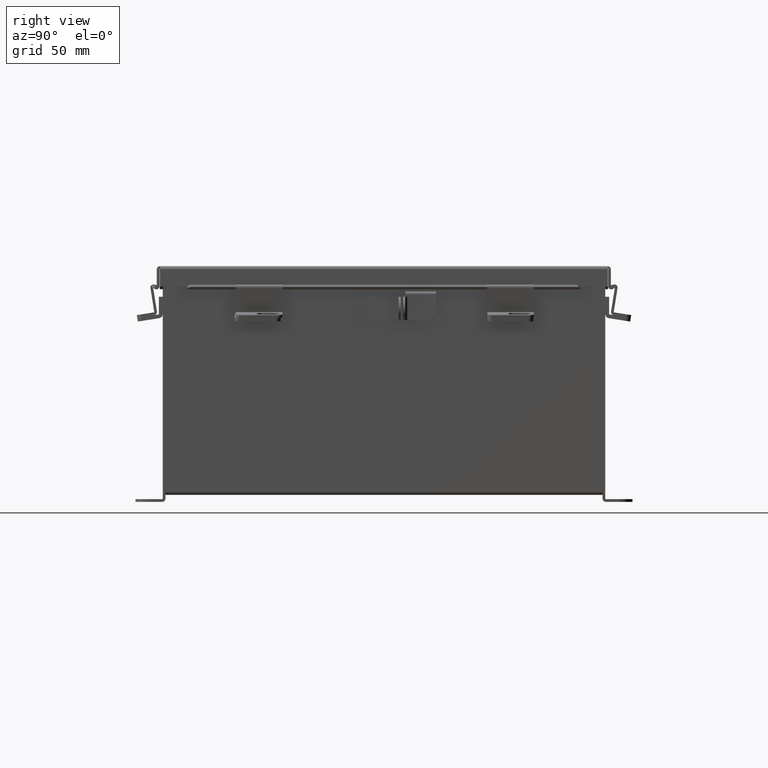
[diagram: clean part render]
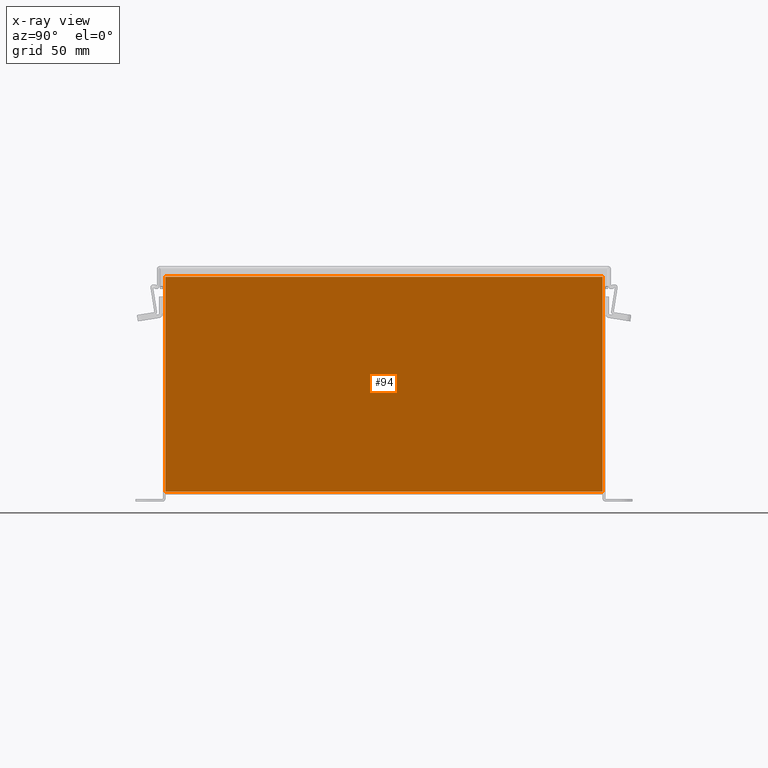
[diagram: x-ray — body ghosted, one internal face saturated and labeled with its STEP entity id]
A machine part, right view, then the same camera in x-ray: the body is ghosted and one INTERNAL B-rep face — a face not visible from any outside direction — is saturated and labeled: STEP entity #94.
In plain terms, the highlighted planar face has unit normal (-1, 0, 0).
Its self-contained STEP definition (entity closure, byte-faithful):
#94 = ADVANCED_FACE ( 'NONE', ( #15209 ), #7136, .T. ) ;
#232 = CARTESIAN_POINT ( 'NONE',  ( 5.925300000000002700, 5.925299999999997300, 0.01300000000000113700 ) ) ;
#1454 = DIRECTION ( 'NONE',  ( -0.0000000000000000000, -1.000000000000000000, -0.0000000000000000000 ) ) ;
#1689 = VECTOR ( 'NONE', #1454, 39.37007874015748100 ) ;
#2349 = CARTESIAN_POINT ( 'NONE',  ( 5.925300000000002700, 0.0000000000000000000, -2.129222105614645300E-014 ) ) ;
#3270 = DIRECTION ( 'NONE',  ( -1.000000000000000000, 0.0000000000000000000, 3.548703509357741000E-015 ) ) ;
#3456 = VERTEX_POINT ( 'NONE', #10278 ) ;
#3475 = EDGE_CURVE ( 'NONE', #3456, #4738, #8302, .T. ) ;
#3597 = CARTESIAN_POINT ( 'NONE',  ( 5.925300000000002700, -5.925300000000000000, 4.274496137441791300E-018 ) ) ;
#4185 = CARTESIAN_POINT ( 'NONE',  ( 5.925300000000022200, 5.925299999999998200, 5.837600000000000100 ) ) ;
#4686 = VECTOR ( 'NONE', #17077, 39.37007874015748100 ) ;
#4738 = VERTEX_POINT ( 'NONE', #232 ) ;
#5027 = VECTOR ( 'NONE', #14556, 39.37007874015748100 ) ;
#6350 = ORIENTED_EDGE ( 'NONE', *, *, #10928, .F. ) ;
#6803 = ORIENTED_EDGE ( 'NONE', *, *, #16096, .F. ) ;
#6999 = EDGE_LOOP ( 'NONE', ( #9377, #6803, #6350, #9363 ) ) ;
#7136 = PLANE ( 'NONE',  #17492 ) ;
#7409 = VERTEX_POINT ( 'NONE', #8335 ) ;
#7572 = CARTESIAN_POINT ( 'NONE',  ( 5.925300000000002700, -5.925300000000000000, 0.01300000000000010700 ) ) ;
#8302 = LINE ( 'NONE', #7572, #4686 ) ;
#8335 = CARTESIAN_POINT ( 'NONE',  ( 5.925300000000022200, -5.925300000000000000, 5.837600000000000100 ) ) ;
#8526 = DIRECTION ( 'NONE',  ( 3.548703509357741800E-015, -1.867738689135653700E-016, 1.000000000000000000 ) ) ;
#8931 = DIRECTION ( 'NONE',  ( 3.548703509357741000E-015, 0.0000000000000000000, 1.000000000000000000 ) ) ;
#9363 = ORIENTED_EDGE ( 'NONE', *, *, #3475, .F. ) ;
#9377 = ORIENTED_EDGE ( 'NONE', *, *, #17328, .F. ) ;
#10278 = CARTESIAN_POINT ( 'NONE',  ( 5.925300000000002700, -5.925300000000000000, 0.01300000000000016400 ) ) ;
#10928 = EDGE_CURVE ( 'NONE', #4738, #13171, #17516, .T. ) ;
#10945 = CARTESIAN_POINT ( 'NONE',  ( 5.925300000000023100, 5.925299999999999100, 5.837600000000000100 ) ) ;
#12681 = LINE ( 'NONE', #3597, #5027 ) ;
#13171 = VERTEX_POINT ( 'NONE', #10945 ) ;
#14556 = DIRECTION ( 'NONE',  ( -3.548703509357741800E-015, -0.0000000000000000000, -1.000000000000000000 ) ) ;
#14755 = VECTOR ( 'NONE', #8526, 39.37007874015748100 ) ;
#15209 = FACE_OUTER_BOUND ( 'NONE', #6999, .T. ) ;
#15657 = LINE ( 'NONE', #4185, #1689 ) ;
#16096 = EDGE_CURVE ( 'NONE', #13171, #7409, #15657, .T. ) ;
#16646 = CARTESIAN_POINT ( 'NONE',  ( 5.925300000000023100, 5.925299999999999100, 5.850600000000000000 ) ) ;
#17077 = DIRECTION ( 'NONE',  ( 3.272245645671368800E-031, 1.000000000000000000, 9.220960942616457600E-017 ) ) ;
#17328 = EDGE_CURVE ( 'NONE', #7409, #3456, #12681, .T. ) ;
#17492 = AXIS2_PLACEMENT_3D ( 'NONE', #2349, #3270, #8931 ) ;
#17516 = LINE ( 'NONE', #16646, #14755 ) ;